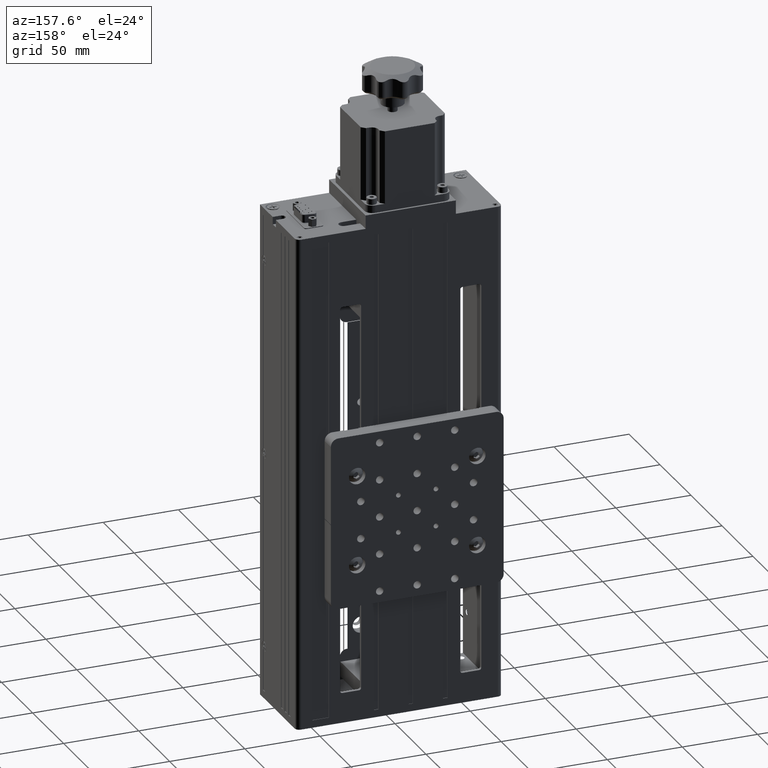
[diagram: clean part render]
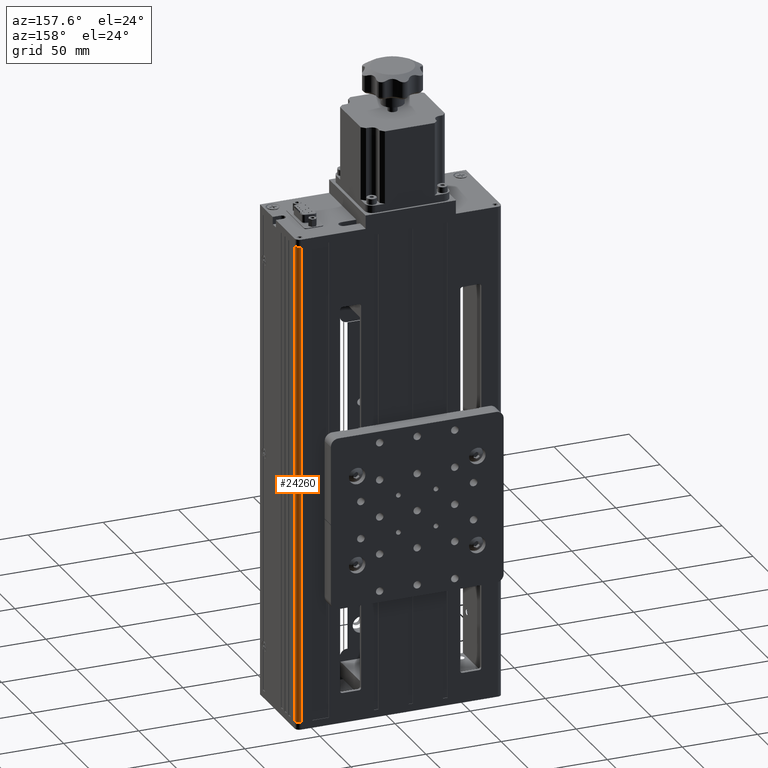
[diagram: same view with one face highlighted and labeled with its STEP entity id]
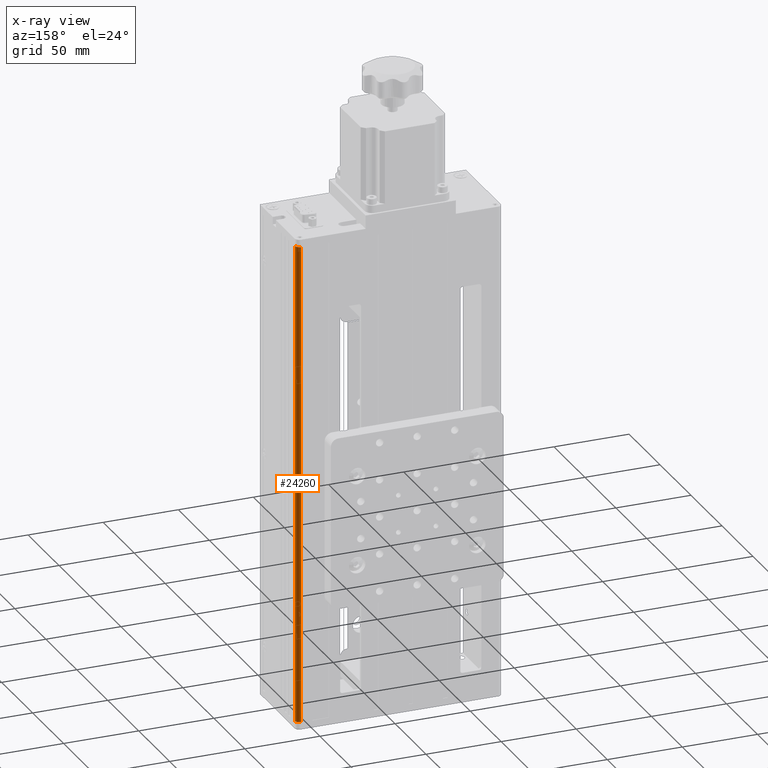
[diagram: x-ray of the same camera — body ghosted, the highlighted face saturated]
A machine part, auxiliary view. The second image highlights one B-rep face of the part: STEP entity #24260.
The next image is the same camera in x-ray: the body ghosted, the highlighted face saturated — about 0% of this face is hidden behind the body in this view.
In plain terms, the highlighted cylindrical surface (edge-blend (fillet) strip) has radius 3 mm, axis along (-0, -0, -1).
Its self-contained STEP definition (entity closure, byte-faithful):
#761 = CYLINDRICAL_SURFACE ( 'NONE', #16671, 3.000000000000002700 ) ;
#786 = CIRCLE ( 'NONE', #2951, 3.000000000000002700 ) ;
#1064 = EDGE_CURVE ( 'NONE', #23100, #2261, #2860, .T. ) ;
#1135 = DIRECTION ( 'NONE',  ( 1.000000000000000000, 0.0000000000000000000, 0.0000000000000000000 ) ) ;
#1396 = CIRCLE ( 'NONE', #27178, 3.000000000000002700 ) ;
#1648 = CARTESIAN_POINT ( 'NONE',  ( 62.71988329892534600, 47.39557601279239000, 97.23929929348793200 ) ) ;
#2261 = VERTEX_POINT ( 'NONE', #17098 ) ;
#2860 = LINE ( 'NONE', #13663, #28991 ) ;
#2951 = AXIS2_PLACEMENT_3D ( 'NONE', #40395, #20735, #1135 ) ;
#5290 = EDGE_LOOP ( 'NONE', ( #27058, #22082, #22457, #28038 ) ) ;
#6654 = EDGE_CURVE ( 'NONE', #29207, #16822, #38682, .T. ) ;
#9181 = DIRECTION ( 'NONE',  ( 0.0000000000000000000, 0.0000000000000000000, 1.000000000000000000 ) ) ;
#9680 = CARTESIAN_POINT ( 'NONE',  ( 62.71988329892534600, 50.39557601279239000, 97.23929929348793200 ) ) ;
#12307 = EDGE_CURVE ( 'NONE', #23100, #29207, #1396, .T. ) ;
#13663 = CARTESIAN_POINT ( 'NONE',  ( 65.71988329892535300, 47.39557601279239000, 97.23929929348793200 ) ) ;
#16671 = AXIS2_PLACEMENT_3D ( 'NONE', #1648, #40734, #37740 ) ;
#16822 = VERTEX_POINT ( 'NONE', #36243 ) ;
#16958 = DIRECTION ( 'NONE',  ( -0.0000000000000000000, -0.0000000000000000000, -1.000000000000000000 ) ) ;
#17098 = CARTESIAN_POINT ( 'NONE',  ( 65.71988329892535300, 47.39557601279239000, -222.7607007065120700 ) ) ;
#20735 = DIRECTION ( 'NONE',  ( 0.0000000000000000000, 0.0000000000000000000, 1.000000000000000000 ) ) ;
#21246 = FACE_OUTER_BOUND ( 'NONE', #5290, .T. ) ;
#22082 = ORIENTED_EDGE ( 'NONE', *, *, #6654, .F. ) ;
#22260 = VECTOR ( 'NONE', #29568, 1000.000000000000000 ) ;
#22457 = ORIENTED_EDGE ( 'NONE', *, *, #12307, .F. ) ;
#22934 = CARTESIAN_POINT ( 'NONE',  ( 62.71988329892534600, 50.39557601279239000, 97.23929929348793200 ) ) ;
#23100 = VERTEX_POINT ( 'NONE', #31545 ) ;
#24260 = ADVANCED_FACE ( 'NONE', ( #21246 ), #761, .T. ) ;
#27058 = ORIENTED_EDGE ( 'NONE', *, *, #30110, .T. ) ;
#27178 = AXIS2_PLACEMENT_3D ( 'NONE', #28857, #9181, #32103 ) ;
#28038 = ORIENTED_EDGE ( 'NONE', *, *, #1064, .T. ) ;
#28857 = CARTESIAN_POINT ( 'NONE',  ( 62.71988329892534600, 47.39557601279239000, 97.23929929348793200 ) ) ;
#28991 = VECTOR ( 'NONE', #16958, 1000.000000000000000 ) ;
#29207 = VERTEX_POINT ( 'NONE', #9680 ) ;
#29568 = DIRECTION ( 'NONE',  ( -0.0000000000000000000, -0.0000000000000000000, -1.000000000000000000 ) ) ;
#30110 = EDGE_CURVE ( 'NONE', #2261, #16822, #786, .T. ) ;
#31545 = CARTESIAN_POINT ( 'NONE',  ( 65.71988329892535300, 47.39557601279239000, 97.23929929348793200 ) ) ;
#32103 = DIRECTION ( 'NONE',  ( 1.000000000000000000, 0.0000000000000000000, 0.0000000000000000000 ) ) ;
#36243 = CARTESIAN_POINT ( 'NONE',  ( 62.71988329892534600, 50.39557601279239000, -222.7607007065120700 ) ) ;
#37740 = DIRECTION ( 'NONE',  ( -1.000000000000000000, 0.0000000000000000000, 0.0000000000000000000 ) ) ;
#38682 = LINE ( 'NONE', #22934, #22260 ) ;
#40395 = CARTESIAN_POINT ( 'NONE',  ( 62.71988329892534600, 47.39557601279239000, -222.7607007065120700 ) ) ;
#40734 = DIRECTION ( 'NONE',  ( -0.0000000000000000000, -0.0000000000000000000, -1.000000000000000000 ) ) ;